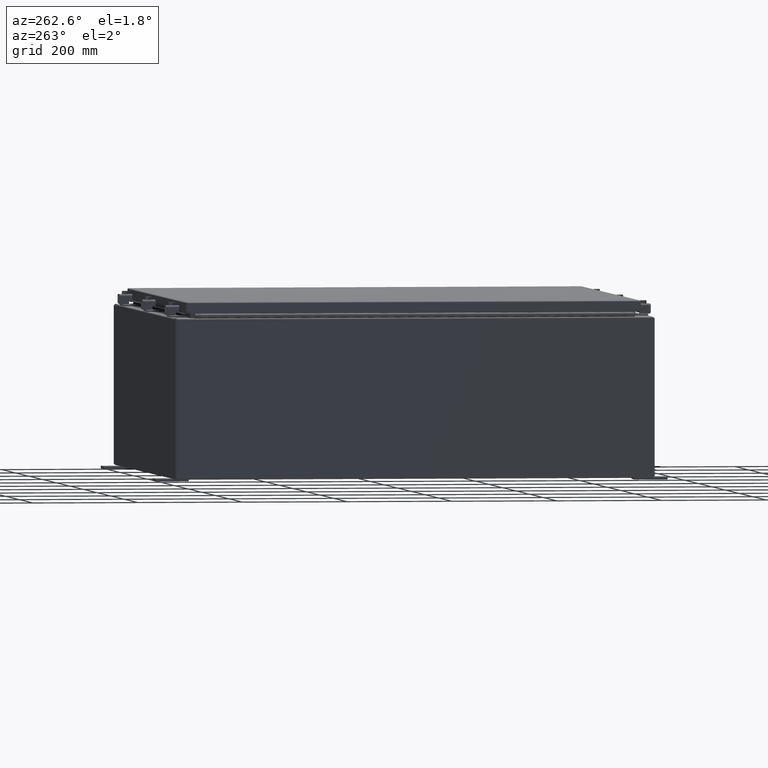
[diagram: clean part render]
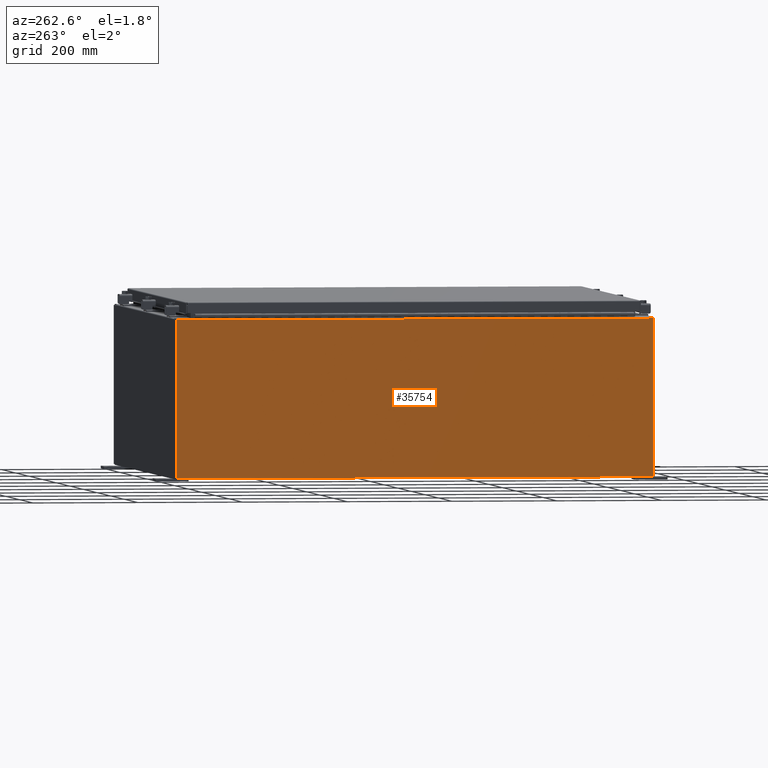
[diagram: same view with one face highlighted and labeled with its STEP entity id]
A machine part, auxiliary view. The second image highlights one B-rep face of the part: STEP entity #35754.
In plain terms, the highlighted planar face has unit normal (1, 0, 0).
Its self-contained STEP definition (entity closure, byte-faithful):
#278 = EDGE_CURVE ( 'NONE', #39561, #29230, #17759, .T. ) ;
#975 = VERTEX_POINT ( 'NONE', #13600 ) ;
#1698 = CARTESIAN_POINT ( 'NONE',  ( -18.00000000000000000, 0.0000000000000000000, -6.293710784286997500E-014 ) ) ;
#1801 = VECTOR ( 'NONE', #24839, 39.37007874015748100 ) ;
#4439 = EDGE_CURVE ( 'NONE', #15690, #39561, #19445, .T. ) ;
#5234 = DIRECTION ( 'NONE',  ( 3.482016343714355100E-015, 0.0000000000000000000, -1.000000000000000000 ) ) ;
#5883 = EDGE_CURVE ( 'NONE', #15690, #975, #11147, .T. ) ;
#11147 = LINE ( 'NONE', #26033, #1801 ) ;
#11178 = EDGE_CURVE ( 'NONE', #29230, #975, #36569, .T. ) ;
#12127 = PLANE ( 'NONE',  #22512 ) ;
#13600 = CARTESIAN_POINT ( 'NONE',  ( -18.00000000000000000, 17.92530000000000000, 0.01299999999999984700 ) ) ;
#15462 = EDGE_LOOP ( 'NONE', ( #30807, #32065, #33460, #35682 ) ) ;
#15626 = DIRECTION ( 'NONE',  ( 3.482016343714355500E-015, 0.0000000000000000000, -1.000000000000000000 ) ) ;
#15690 = VERTEX_POINT ( 'NONE', #32441 ) ;
#16427 = CARTESIAN_POINT ( 'NONE',  ( -18.00000000000000000, 17.92530000000000000, -6.293710784286997500E-014 ) ) ;
#17137 = VECTOR ( 'NONE', #15626, 39.37007874015748100 ) ;
#17759 = LINE ( 'NONE', #23703, #28112 ) ;
#19445 = LINE ( 'NONE', #33673, #36729 ) ;
#22512 = AXIS2_PLACEMENT_3D ( 'NONE', #1698, #26179, #5234 ) ;
#23692 = DIRECTION ( 'NONE',  ( 0.0000000000000000000, 1.000000000000000000, 0.0000000000000000000 ) ) ;
#23703 = CARTESIAN_POINT ( 'NONE',  ( -18.00000000000004300, -17.92530000000000000, 11.83760000000000200 ) ) ;
#24839 = DIRECTION ( 'NONE',  ( -0.0000000000000000000, 1.000000000000000000, -0.0000000000000000000 ) ) ;
#26033 = CARTESIAN_POINT ( 'NONE',  ( -18.00000000000000000, 17.92530000000000000, 0.01299999999999984700 ) ) ;
#26179 = DIRECTION ( 'NONE',  ( 1.000000000000000000, 0.0000000000000000000, 3.482016343714355100E-015 ) ) ;
#28112 = VECTOR ( 'NONE', #23692, 39.37007874015748100 ) ;
#29230 = VERTEX_POINT ( 'NONE', #42150 ) ;
#30807 = ORIENTED_EDGE ( 'NONE', *, *, #278, .T. ) ;
#32065 = ORIENTED_EDGE ( 'NONE', *, *, #11178, .T. ) ;
#32441 = CARTESIAN_POINT ( 'NONE',  ( -18.00000000000000000, -17.92530000000000000, 0.01299999999999984700 ) ) ;
#33360 = DIRECTION ( 'NONE',  ( -3.482016343714355500E-015, 0.0000000000000000000, 1.000000000000000000 ) ) ;
#33460 = ORIENTED_EDGE ( 'NONE', *, *, #5883, .F. ) ;
#33673 = CARTESIAN_POINT ( 'NONE',  ( -18.00000000000000000, -17.92530000000000000, -6.293710784286997500E-014 ) ) ;
#35682 = ORIENTED_EDGE ( 'NONE', *, *, #4439, .T. ) ;
#35754 = ADVANCED_FACE ( 'NONE', ( #44449 ), #12127, .F. ) ;
#36569 = LINE ( 'NONE', #16427, #17137 ) ;
#36729 = VECTOR ( 'NONE', #33360, 39.37007874015748100 ) ;
#39561 = VERTEX_POINT ( 'NONE', #41700 ) ;
#41700 = CARTESIAN_POINT ( 'NONE',  ( -18.00000000000004300, -17.92530000000000000, 11.83760000000000200 ) ) ;
#42150 = CARTESIAN_POINT ( 'NONE',  ( -18.00000000000004300, 17.92530000000000000, 11.83760000000000200 ) ) ;
#44449 = FACE_OUTER_BOUND ( 'NONE', #15462, .T. ) ;